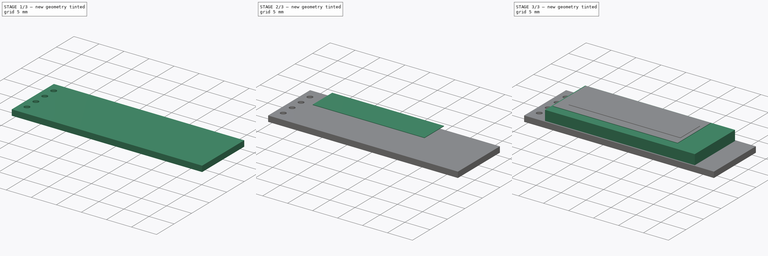
[diagram: build sequence overview — one tinted view per stage of 3, left to right]
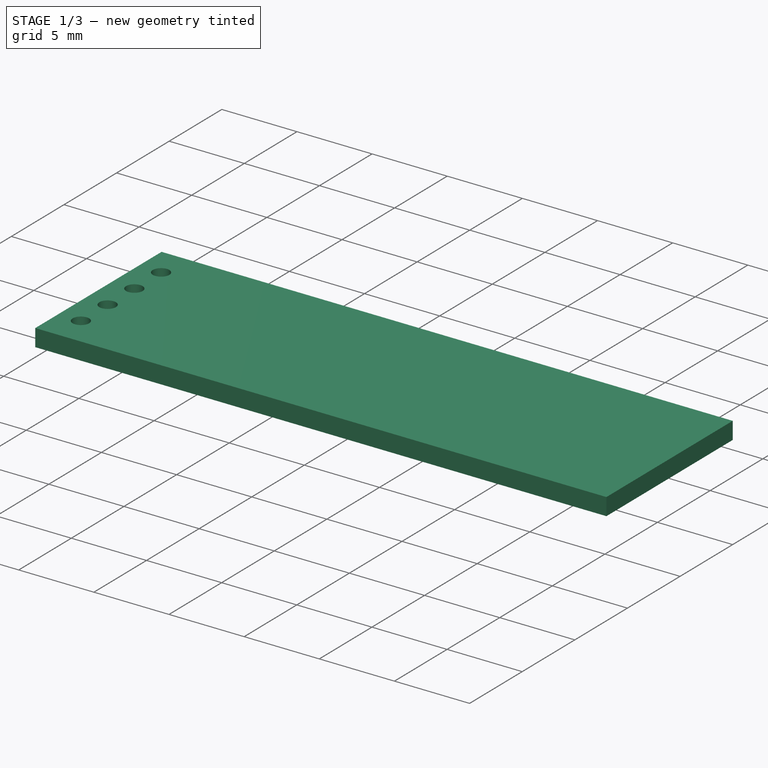
[diagram: stage 1 of 3 — iso view after this stage's code; geometry added in this stage tinted green]
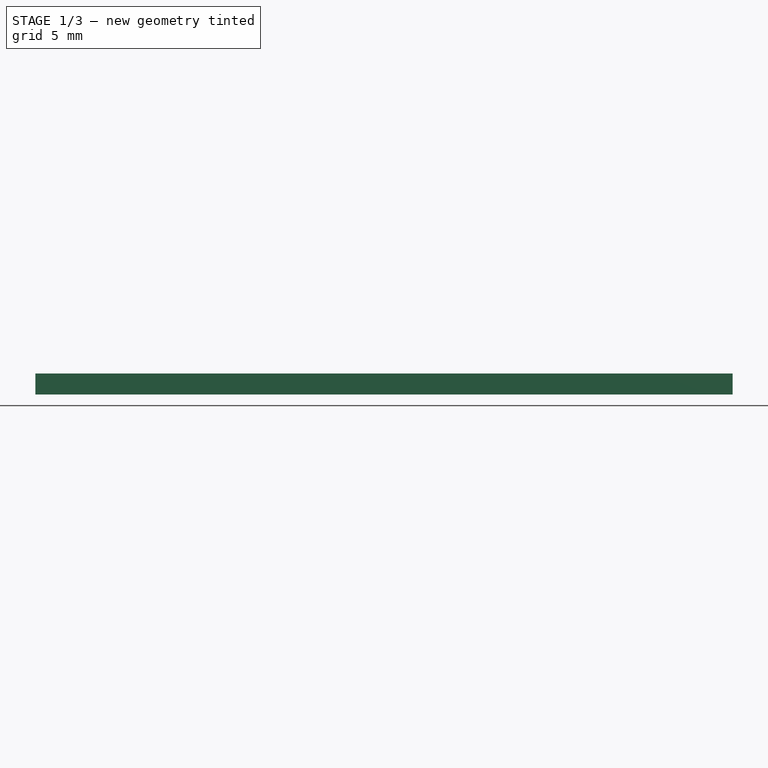
[diagram: stage 1 of 3 — front view after this stage's code; geometry added in this stage tinted green]
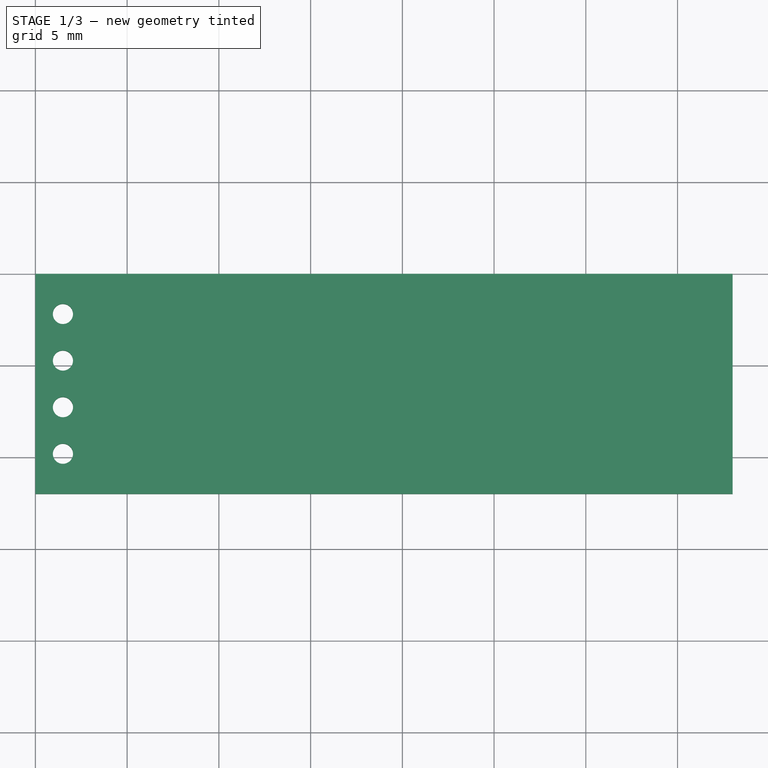
[diagram: stage 1 of 3 — top view after this stage's code; geometry added in this stage tinted green]
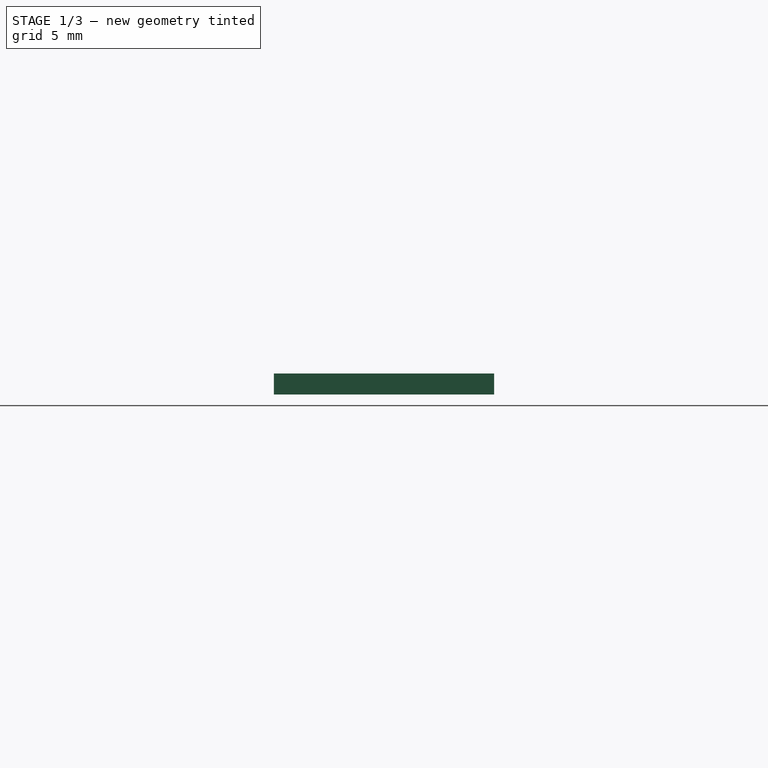
[diagram: stage 1 of 3 — right view after this stage's code; geometry added in this stage tinted green]
FCSTD DOCUMENT  (FreeCAD 0.19R22756 (Git))
Label: D19_Ssd1306Oled128x32
License: All rights reserved
LicenseURL: http://en.wikipedia.org/wiki/All_rights_reserved
objects: Sketcher::SketchObject×5, PartDesign::Pad×4, PartDesign::Body×4, PartDesign::ShapeBinder×3, PartDesign::CoordinateSystem×3, PartDesign::Pocket×1, App::Part×1
note: 25 computed .brp shape members not serialized (recipe doc carries the construction recipe); baked Part::Feature solids carry a one-line shape summary decoded from their .brp

FEATURE [Sketcher::SketchObject] Sketch
  MapMode = 5
  Support = -> [XY_Plane]
  sketch-geometry (4):
    g0: LineSegment StartX=0 StartY=0 StartZ=0 EndX=38 EndY=0 EndZ=0
    g1: LineSegment StartX=38 StartY=0 StartZ=0 EndX=38 EndY=-12 EndZ=0
    g2: LineSegment StartX=38 StartY=-12 StartZ=0 EndX=0 EndY=-12 EndZ=0
    g3: LineSegment StartX=0 StartY=-12 StartZ=0 EndX=0 EndY=0 EndZ=0
  constraints (11):
    c: Coincident(g0,g1)
    c: Coincident(g1,g2)
    c: Coincident(g2,g3)
    c: Coincident(g3,g0)
    c: Horizontal(g0)
    c: Horizontal(g2)
    c: Vertical(g1)
    c: Vertical(g3)
    c: Coincident(g0,g-1)
    c: DistanceX(g0,g0) = 38
    c: DistanceY(g1,g1) = 12
FEATURE [PartDesign::Pad] Pad
  Direction = (1,1,1)
  Length = 1.15
  Length2 = 100
  Profile = -> Sketch
  Type = 0
FEATURE [Sketcher::SketchObject] Sketch001
  ExternalGeometry = -> [Pad]
  MapMode = 5
  Placement = pos=(0,0,1.15) rot=(0,0,1;0rad)
  Support = -> [Pad]
  sketch-geometry (5):
    g0: Circle CenterX=1.5 CenterY=-2.19 CenterZ=0 NormalX=0 NormalY=0 NormalZ=1 AngleXU=0 Radius=0.55
    g1: Circle CenterX=1.5 CenterY=-9.81 CenterZ=0 NormalX=0 NormalY=0 NormalZ=1 AngleXU=0 Radius=0.55
    g2: Circle CenterX=1.5 CenterY=-4.73 CenterZ=0 NormalX=0 NormalY=0 NormalZ=1 AngleXU=0 Radius=0.55
    g3: Circle CenterX=1.5 CenterY=-7.27 CenterZ=0 NormalX=0 NormalY=0 NormalZ=1 AngleXU=0 Radius=0.55
    g4: LineSegment [constr] StartX=0 StartY=-6 StartZ=0 EndX=1.5 EndY=-6 EndZ=0
  constraints (14):
    c: Horizontal(g4)
    c: Vertical(g4,g-1)
    c: Symmetric(g2,g3,g4)
    c: Symmetric(g0,g1,g4)
    c: Vertical(g1,g3)
    c: Vertical(g3,g4)
    c: Equal(g0,g2)
    c: Equal(g2,g3)
    c: Equal(g3,g1)
    c: Diameter(g0) = 1.1
    c: DistanceY(g2,g0) = 2.54
    c: DistanceY(g3,g2) = 2.54
    c: DistanceX(g4,g4) = 1.5
    c: DistanceY(g4,g-1) = 6
FEATURE [PartDesign::Pocket] Pocket
  BaseFeature = -> Pad
  Length = 5
  Length2 = 100
  Profile = -> Sketch001
  Type = 1
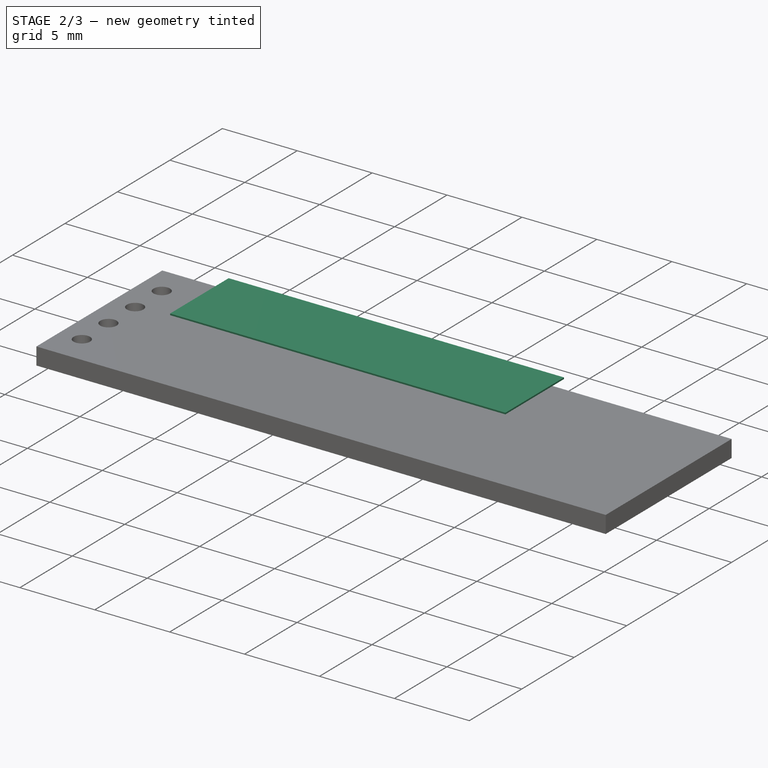
[diagram: stage 2 of 3 — iso view after this stage's code; geometry added in this stage tinted green]
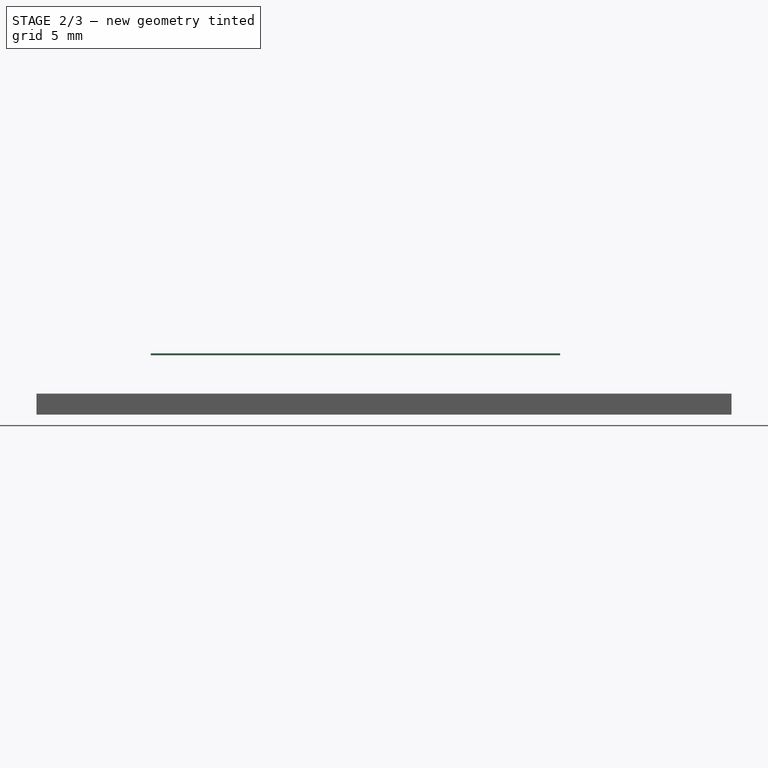
[diagram: stage 2 of 3 — front view after this stage's code; geometry added in this stage tinted green]
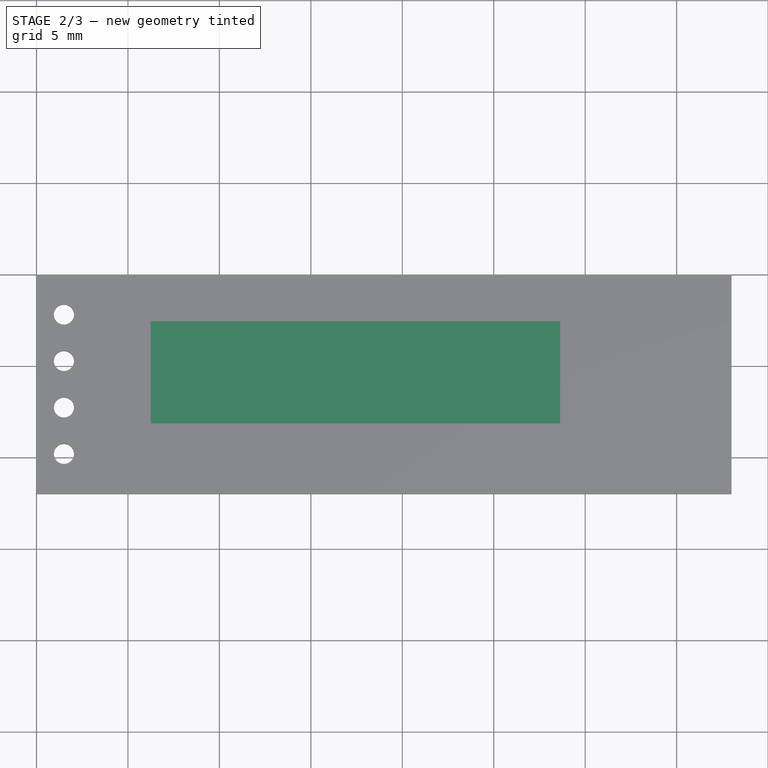
[diagram: stage 2 of 3 — top view after this stage's code; geometry added in this stage tinted green]
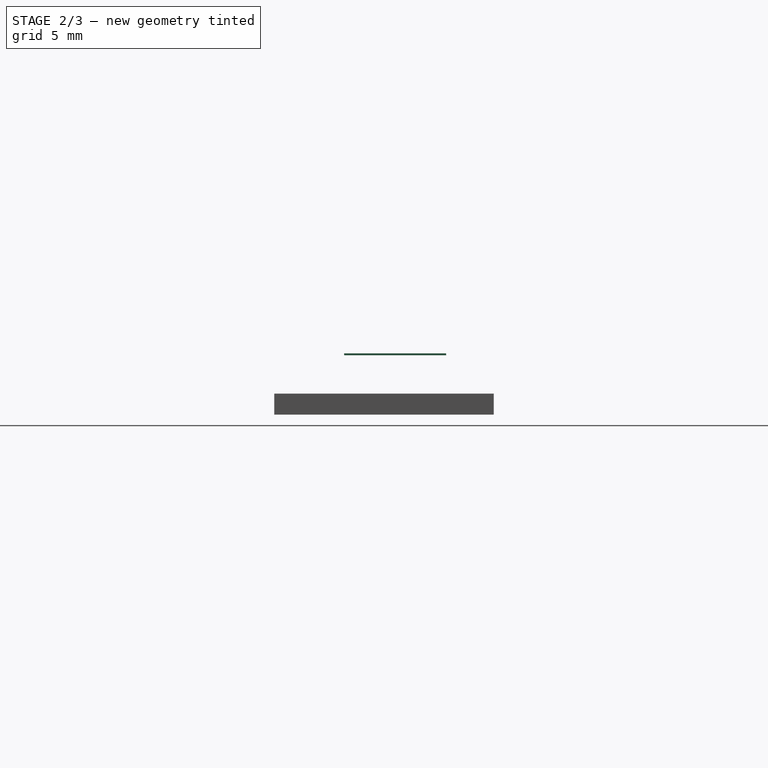
[diagram: stage 2 of 3 — right view after this stage's code; geometry added in this stage tinted green]
FEATURE [PartDesign::Body] BlackFilm
  Group = -> [LCS_0001,CopyPad001,Sketch003,Pad002]
  Origin = -> Origin003
  Tip = -> Pad002
FEATURE [PartDesign::ShapeBinder] CopyPad002
  Placement = pos=(0,0,0.1) rot=(0,0,1;0rad)
  TraceSupport = false
FEATURE [Sketcher::SketchObject] Sketch004
  MapMode = 5
  Placement = pos=(0,0,3.25) rot=(0,0,1;0rad)
  Support = -> [CopyPad002]
  sketch-geometry (4):
    g0: LineSegment StartX=6.25 StartY=-2.6 StartZ=0 EndX=28.63 EndY=-2.6 EndZ=0
    g1: LineSegment StartX=28.63 StartY=-2.6 StartZ=0 EndX=28.63 EndY=-8.18 EndZ=0
    g2: LineSegment StartX=28.63 StartY=-8.18 StartZ=0 EndX=6.25 EndY=-8.18 EndZ=0
    g3: LineSegment StartX=6.25 StartY=-8.18 StartZ=0 EndX=6.25 EndY=-2.6 EndZ=0
  constraints (12):
    c: Coincident(g0,g1)
    c: Coincident(g1,g2)
    c: Coincident(g2,g3)
    c: Coincident(g3,g0)
    c: Horizontal(g0)
    c: Horizontal(g2)
    c: Vertical(g1)
    c: Vertical(g3)
    c: DistanceY(g3,g3) = 5.58
    c: DistanceX(g0,g0) = 22.38
    c: DistanceY(g0,g-1) = 2.6
    c: DistanceX(g-1,g0) = 6.25
FEATURE [PartDesign::Pad] Pad003
  Direction = (1,1,1)
  Length = 0.1
  Length2 = 100
  Placement = pos=(0,0,0.1) rot=(0,0,1;0rad)
  Profile = -> Sketch004
  Type = 0
FEATURE [PartDesign::Body] Body002  label="Pixel Area"
  Group = -> [CopyPad002,Sketch004,Pad003]
  Origin = -> Origin004
  Tip = -> Pad003
FEATURE [PartDesign::CoordinateSystem] LCS_1
  AttacherType = Attacher::AttachEngine3D
  AttachmentOffset = pos=(0,0,0) rot=(0,0,-1;1.5708rad)
  MapMode = 11
  Placement = pos=(1.5,-2.19,0) rot=(0,0,1;0rad)
  Support = -> [Pocket]
FEATURE [App::Part] Part
  Group = -> [LCS_0,Body001,Body,BlackFilm,Body002,LCS_1]
  Origin = -> Origin002
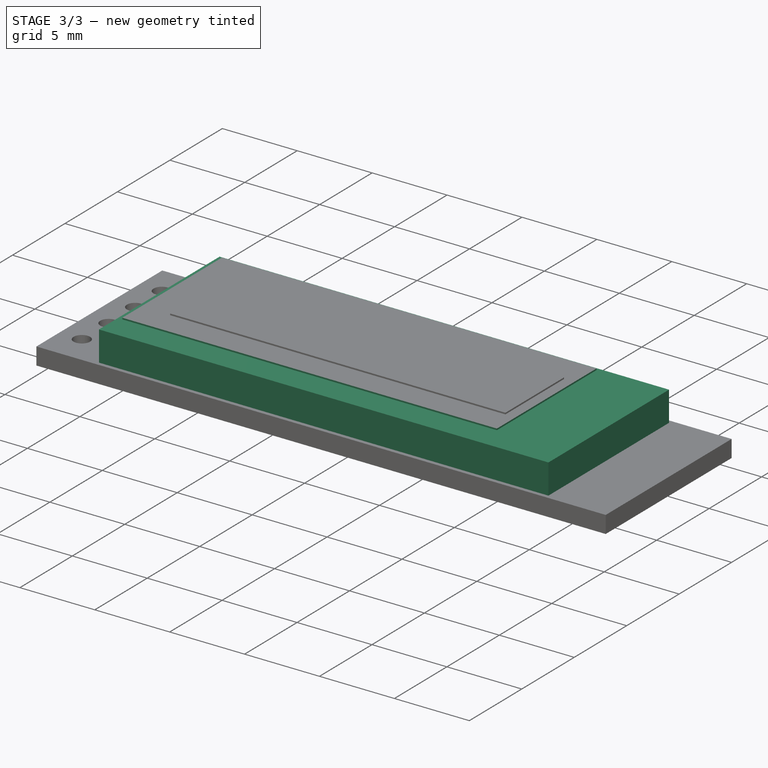
[diagram: stage 3 of 3 — iso view after this stage's code; geometry added in this stage tinted green]
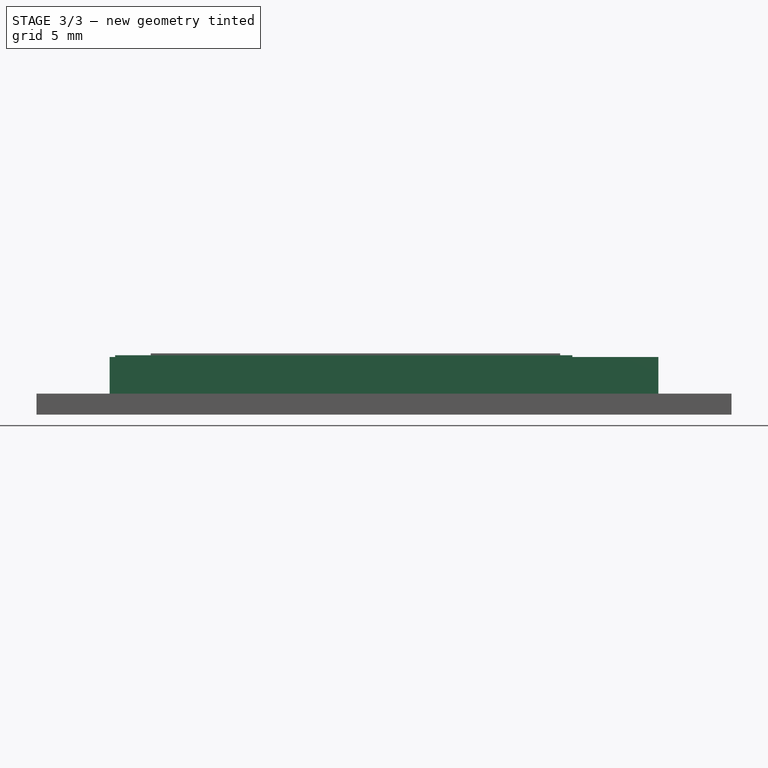
[diagram: stage 3 of 3 — front view after this stage's code; geometry added in this stage tinted green]
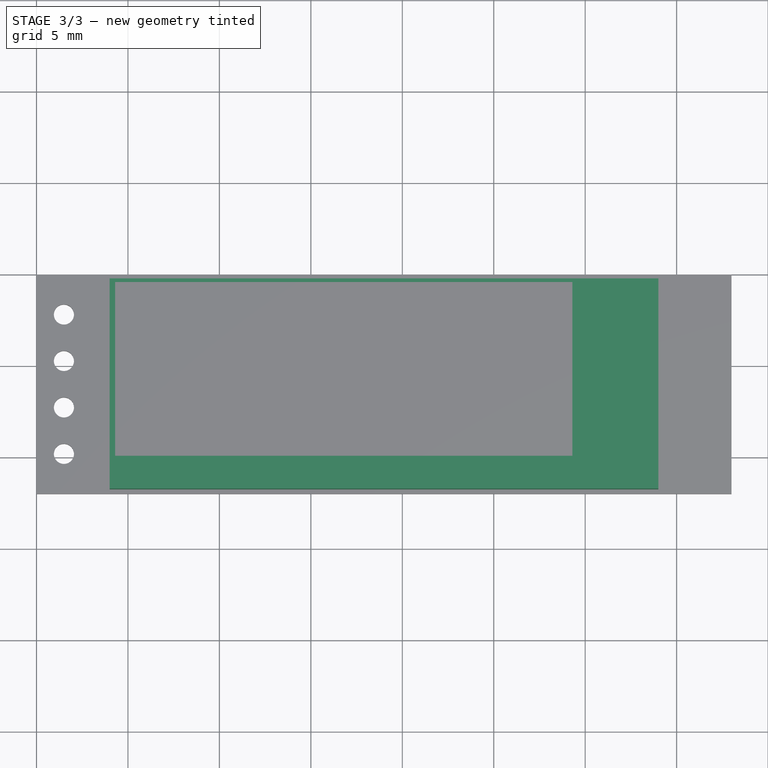
[diagram: stage 3 of 3 — top view after this stage's code; geometry added in this stage tinted green]
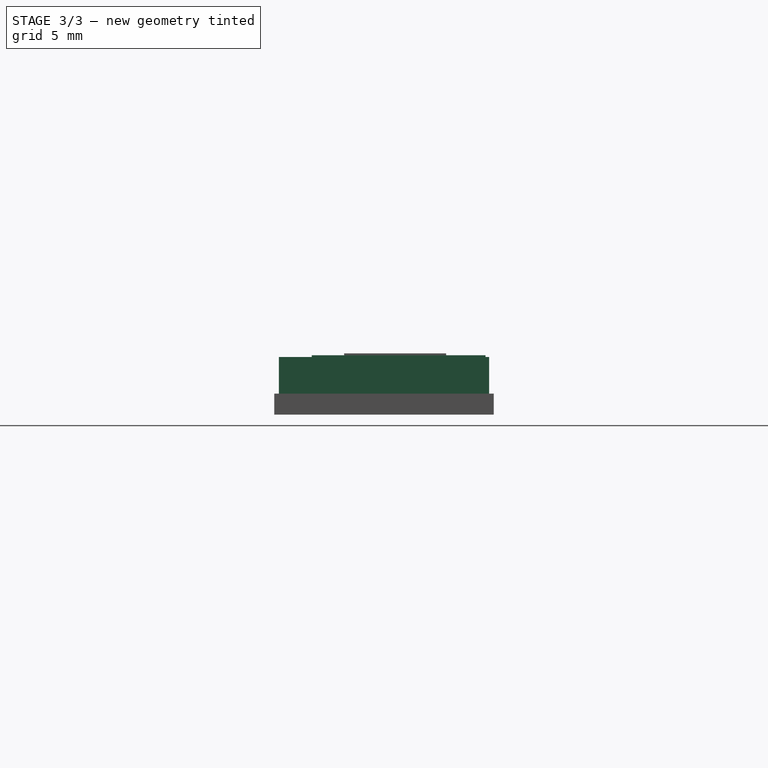
[diagram: stage 3 of 3 — right view after this stage's code; geometry added in this stage tinted green]
FEATURE [PartDesign::Body] Body  label="PCB"
  Group = -> [Sketch,Pad,Sketch001,Pocket]
  Origin = -> Origin
  Tip = -> Pocket
FEATURE [PartDesign::ShapeBinder] CopyPocket
  TraceSupport = false
FEATURE [Sketcher::SketchObject] Sketch002
  MapMode = 5
  Placement = pos=(0,0,1.15) rot=(0,0,1;0rad)
  Support = -> [CopyPocket]
  sketch-geometry (4):
    g0: LineSegment StartX=4 StartY=-0.25 StartZ=0 EndX=34 EndY=-0.25 EndZ=0
    g1: LineSegment StartX=34 StartY=-0.25 StartZ=0 EndX=34 EndY=-11.75 EndZ=0
    g2: LineSegment StartX=34 StartY=-11.75 StartZ=0 EndX=4 EndY=-11.75 EndZ=0
    g3: LineSegment StartX=4 StartY=-11.75 StartZ=0 EndX=4 EndY=-0.25 EndZ=0
  constraints (12):
    c: Coincident(g0,g1)
    c: Coincident(g1,g2)
    c: Coincident(g2,g3)
    c: Coincident(g3,g0)
    c: Horizontal(g0)
    c: Horizontal(g2)
    c: Vertical(g1)
    c: Vertical(g3)
    c: DistanceY(g0,g-1) = 0.25
    c: DistanceX(g-1,g0) = 4
    c: DistanceY(g3,g3) = 11.5
    c: DistanceX(g0,g0) = 30
FEATURE [PartDesign::Pad] Pad001
  Direction = (1,1,1)
  Length = 2
  Length2 = 100
  Profile = -> Sketch002
  Type = 0
FEATURE [PartDesign::Body] Body001  label="Glass"
  Group = -> [CopyPocket,Sketch002,Pad001]
  Origin = -> Origin001
  Tip = -> Pad001
FEATURE [PartDesign::CoordinateSystem] LCS_0
  AttacherType = Attacher::AttachEngine3D
  MapMode = 2
  Support = -> [X_Axis002]
FEATURE [PartDesign::CoordinateSystem] LCS_0001
  AttacherType = Attacher::AttachEngine3D
  MapMode = 2
  Support = -> [X_Axis003]
FEATURE [PartDesign::ShapeBinder] CopyPad001
  Placement = pos=(0,0,2) rot=(0,0,1;0rad)
  TraceSupport = false
FEATURE [Sketcher::SketchObject] Sketch003
  MapMode = 5
  Placement = pos=(0,0,3.15) rot=(0,0,1;0rad)
  Support = -> [CopyPad001]
  sketch-geometry (4):
    g0: LineSegment StartX=4.3 StartY=-0.45 StartZ=0 EndX=29.3 EndY=-0.45 EndZ=0
    g1: LineSegment StartX=29.3 StartY=-0.45 StartZ=0 EndX=29.3 EndY=-9.95 EndZ=0
    g2: LineSegment StartX=29.3 StartY=-9.95 StartZ=0 EndX=4.3 EndY=-9.95 EndZ=0
    g3: LineSegment StartX=4.3 StartY=-9.95 StartZ=0 EndX=4.3 EndY=-0.45 EndZ=0
  constraints (12):
    c: Coincident(g0,g1)
    c: Coincident(g1,g2)
    c: Coincident(g2,g3)
    c: Coincident(g3,g0)
    c: Horizontal(g0)
    c: Horizontal(g2)
    c: Vertical(g1)
    c: Vertical(g3)
    c: DistanceY(g0,g-1) = 0.45
    c: DistanceX(g-1,g0) = 4.3
    c: DistanceX(g0,g0) = 25
    c: DistanceY(g1,g1) = 9.5
FEATURE [PartDesign::Pad] Pad002
  Direction = (1,1,1)
  Length = 0.1
  Length2 = 100
  Placement = pos=(0,0,2) rot=(0,0,1;0rad)
  Profile = -> Sketch003
  Type = 0
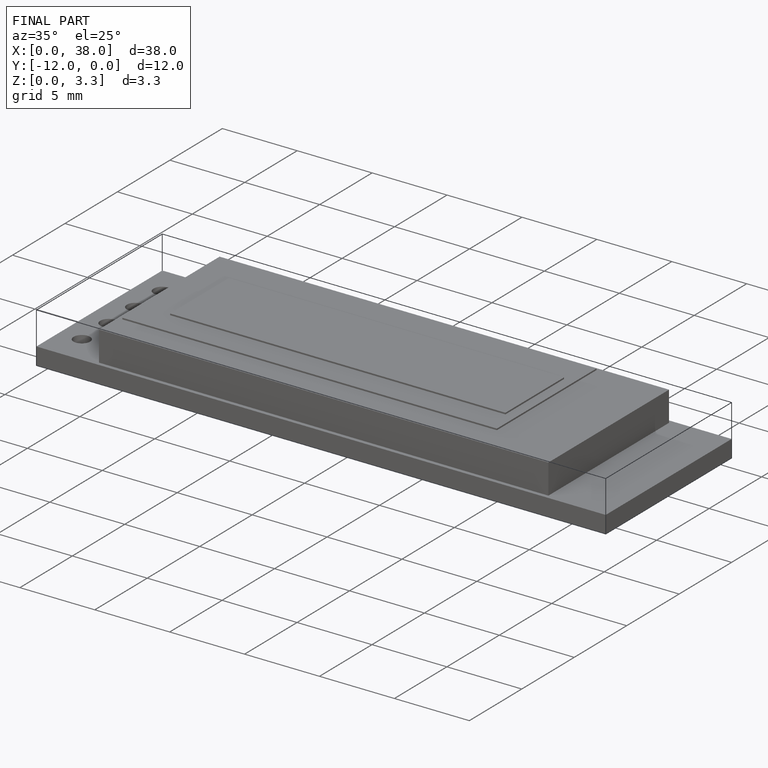
[diagram: finished part — iso view with bounding-box wireframe]
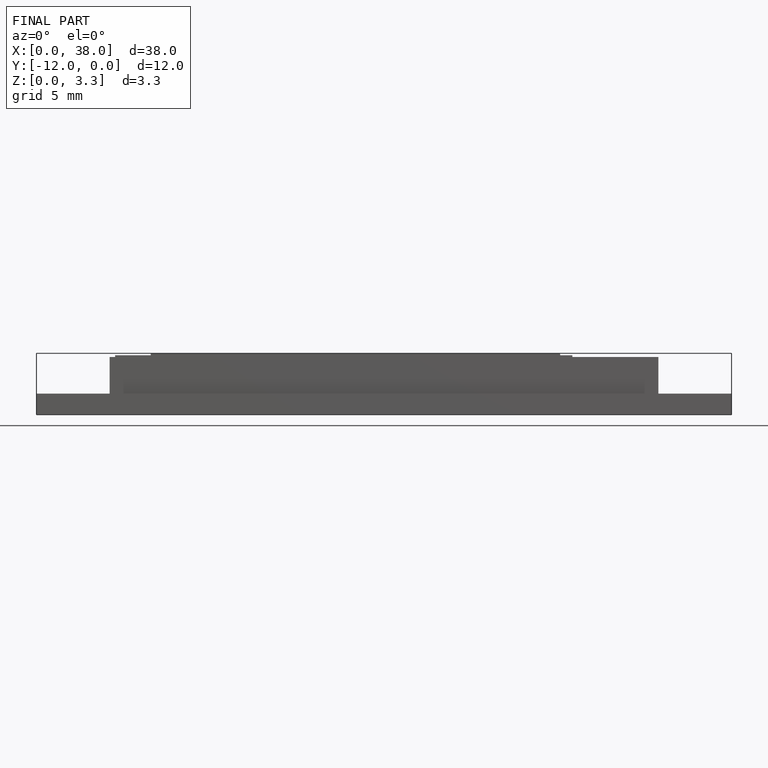
[diagram: finished part — front view with bounding-box wireframe]
